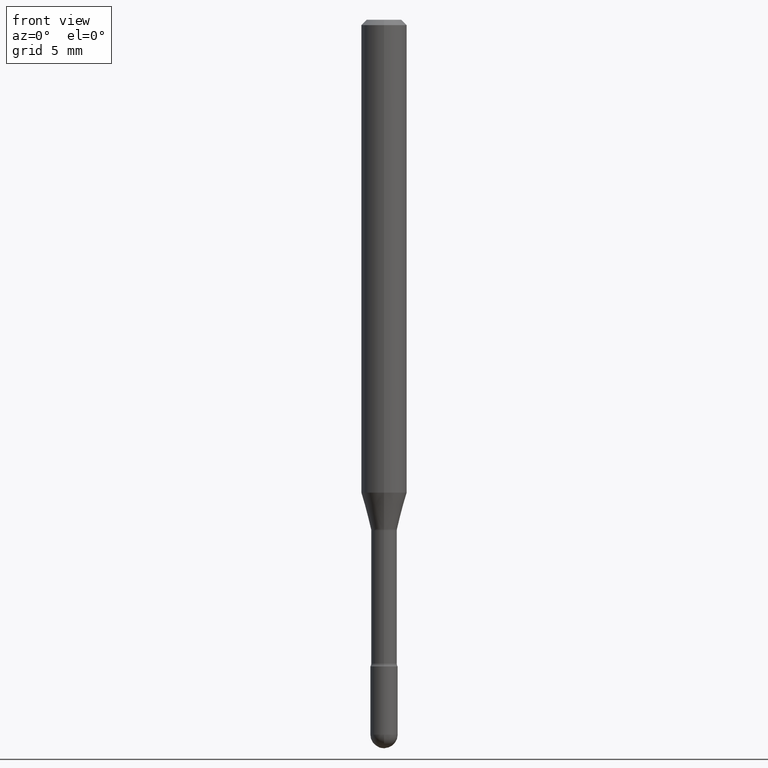
[diagram: clean part render]
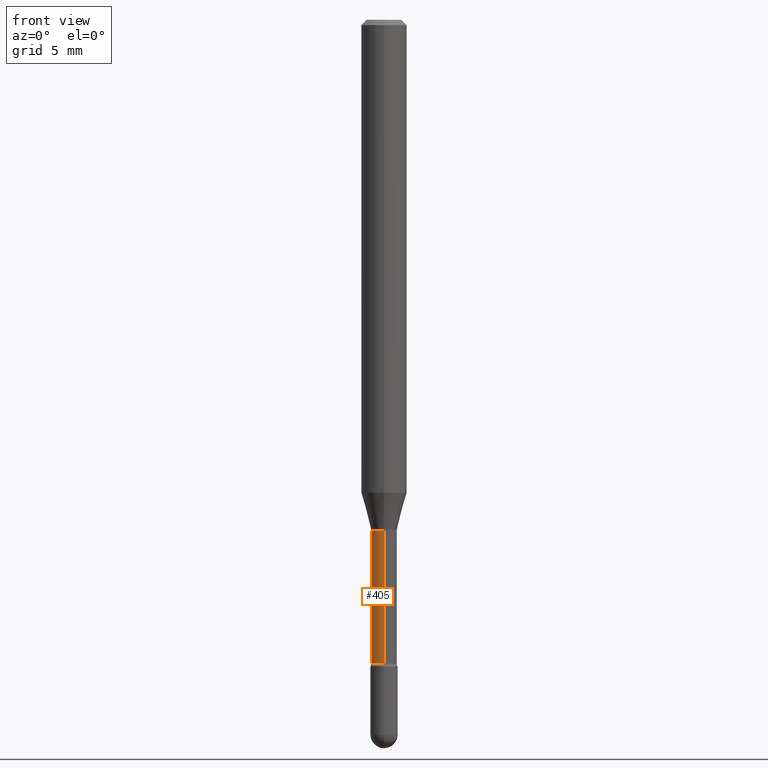
[diagram: same view with one face highlighted and labeled with its STEP entity id]
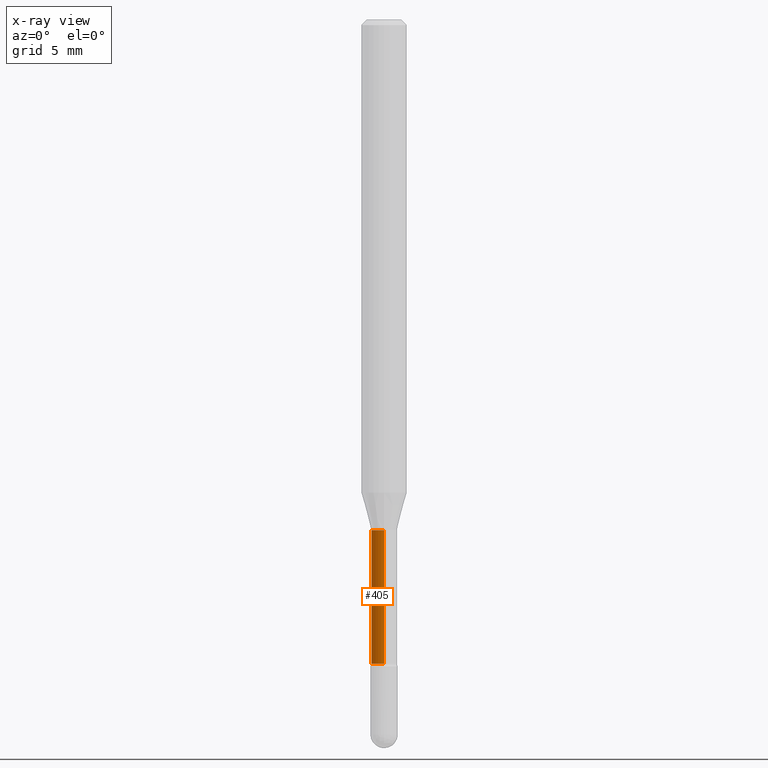
[diagram: x-ray of the same camera — body ghosted, the highlighted face saturated]
A machine part, front view. The second image highlights one B-rep face of the part: STEP entity #405.
The next image is the same camera in x-ray: the body ghosted, the highlighted face saturated — about 0% of this face is hidden behind the body in this view.
In plain terms, the highlighted cylindrical surface (edge-blend (fillet) strip) has radius 0.8954 mm, axis along (-0, 0, 1).
Its self-contained STEP definition (entity closure, byte-faithful):
#15 = CARTESIAN_POINT ( 'NONE',  ( -2.461494343883982794E-16, -0.03525000000000625550, -1.767098259685360384 ) ) ;
#24 = DIRECTION ( 'NONE',  ( -2.445465254371968142E-29, 3.491486425241759553E-15, 1.000000000000000000 ) ) ;
#32 = DIRECTION ( 'NONE',  ( -2.445465254371968142E-29, 3.491486425241759553E-15, 1.000000000000000000 ) ) ;
#48 = VERTEX_POINT ( 'NONE', #433 ) ;
#53 = AXIS2_PLACEMENT_3D ( 'NONE', #221, #356, #94 ) ;
#64 = LINE ( 'NONE', #565, #531 ) ;
#67 = DIRECTION ( 'NONE',  ( -2.445465254371968142E-29, 3.491486425241759553E-15, 1.000000000000000000 ) ) ;
#77 = VERTEX_POINT ( 'NONE', #500 ) ;
#85 = ORIENTED_EDGE ( 'NONE', *, *, #457, .F. ) ;
#94 = DIRECTION ( 'NONE',  ( -6.982962677686266711E-15, -1.000000000000000000, 3.491486425241760737E-15 ) ) ;
#156 = EDGE_CURVE ( 'NONE', #77, #244, #530, .T. ) ;
#177 = VECTOR ( 'NONE', #24, 39.37007874015748143 ) ;
#221 = CARTESIAN_POINT ( 'NONE',  ( -1.169113584055446105E-44, 1.669184350826100908E-30, 4.780733988912460139E-16 ) ) ;
#243 = DIRECTION ( 'NONE',  ( -6.982962677686265133E-15, -1.000000000000000000, 0.000000000000000000 ) ) ;
#244 = VERTEX_POINT ( 'NONE', #339 ) ;
#260 = DIRECTION ( 'NONE',  ( -2.445465254371968142E-29, 3.491486425241759553E-15, 1.000000000000000000 ) ) ;
#265 = ORIENTED_EDGE ( 'NONE', *, *, #156, .F. ) ;
#271 = EDGE_LOOP ( 'NONE', ( #85, #425, #469, #265 ) ) ;
#286 = AXIS2_PLACEMENT_3D ( 'NONE', #350, #260, #432 ) ;
#296 = EDGE_CURVE ( 'NONE', #48, #349, #452, .T. ) ;
#317 = CYLINDRICAL_SURFACE ( 'NONE', #53, 0.03525000000000003825 ) ;
#339 = CARTESIAN_POINT ( 'NONE',  ( -2.461494343884065624E-16, -0.03525000000000488853, -1.401974787463811101 ) ) ;
#349 = VERTEX_POINT ( 'NONE', #15 ) ;
#350 = CARTESIAN_POINT ( 'NONE',  ( 4.321377395121722522E-29, -6.169799585759774289E-15, -1.767098259685360384 ) ) ;
#356 = DIRECTION ( 'NONE',  ( -2.445465254371968142E-29, 3.491486425241759553E-15, 1.000000000000000000 ) ) ;
#405 = ADVANCED_FACE ( 'NONE', ( #483 ), #317, .T. ) ;
#414 = CARTESIAN_POINT ( 'NONE',  ( -2.461494343884411737E-16, -0.03525000000000003825, 6.011482953810182667E-16 ) ) ;
#425 = ORIENTED_EDGE ( 'NONE', *, *, #296, .T. ) ;
#432 = DIRECTION ( 'NONE',  ( -6.982962677686266711E-15, -1.000000000000000000, 0.000000000000000000 ) ) ;
#433 = CARTESIAN_POINT ( 'NONE',  ( 2.584599201327800595E-16, 0.03524999999999392508, -1.767098259685360384 ) ) ;
#452 = CIRCLE ( 'NONE', #286, 0.03525000000000008682 ) ;
#457 = EDGE_CURVE ( 'NONE', #48, #77, #64, .T. ) ;
#469 = ORIENTED_EDGE ( 'NONE', *, *, #553, .T. ) ;
#483 = FACE_OUTER_BOUND ( 'NONE', #271, .T. ) ;
#496 = AXIS2_PLACEMENT_3D ( 'NONE', #545, #67, #243 ) ;
#500 = CARTESIAN_POINT ( 'NONE',  ( 2.504663143554786788E-16, 0.03524999999999509775, -1.401974787463811101 ) ) ;
#530 = CIRCLE ( 'NONE', #496, 0.03524999999999999661 ) ;
#531 = VECTOR ( 'NONE', #32, 39.37007874015748143 ) ;
#542 = LINE ( 'NONE', #414, #177 ) ;
#545 = CARTESIAN_POINT ( 'NONE',  ( 3.428480630248274959E-29, -4.894975938961098248E-15, -1.401974787463811101 ) ) ;
#553 = EDGE_CURVE ( 'NONE', #349, #244, #542, .T. ) ;
#565 = CARTESIAN_POINT ( 'NONE',  ( 2.504663143554355873E-16, 0.03525000000000003825, 3.549985024014739091E-16 ) ) ;